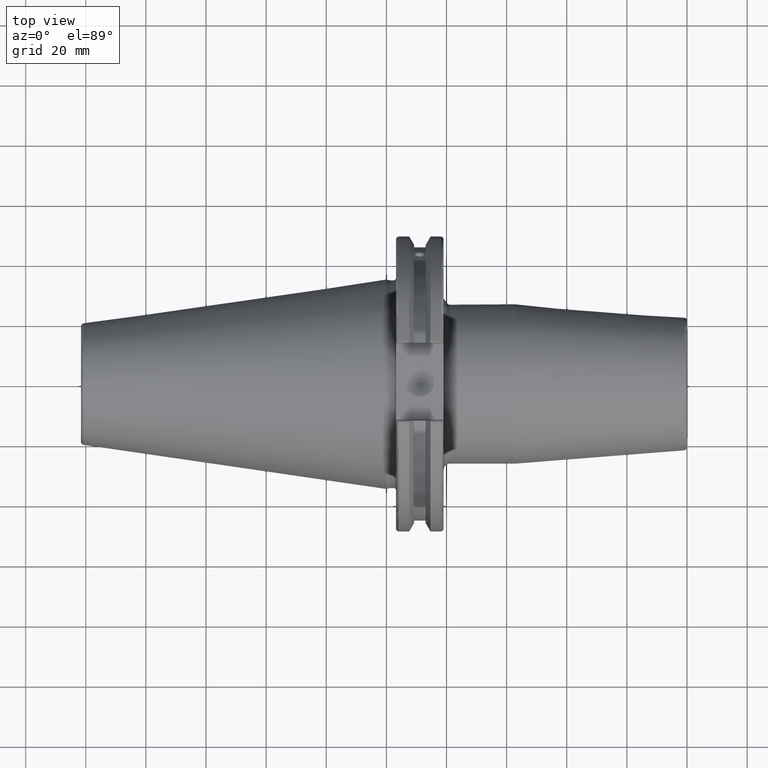
[diagram: clean part render]
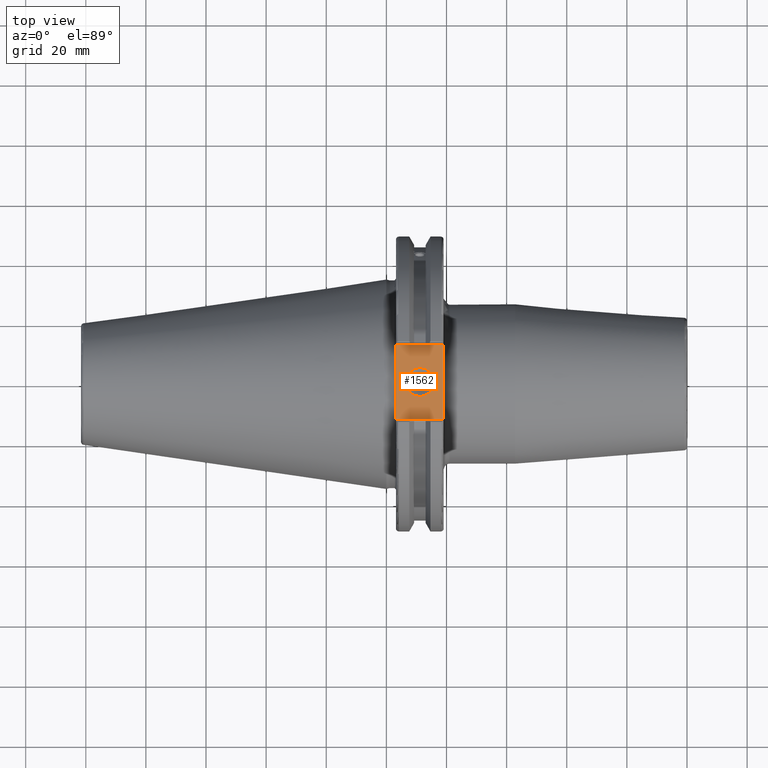
[diagram: same view with one face highlighted and labeled with its STEP entity id]
A machine part, top view. The second image highlights one B-rep face of the part: STEP entity #1562.
In plain terms, the highlighted planar face has unit normal (0, 0, 1).
Its self-contained STEP definition (entity closure, byte-faithful):
#88=LINE('',#2243,#182);
#132=LINE('',#2840,#226);
#160=LINE('',#3069,#254);
#162=LINE('',#3072,#256);
#182=VECTOR('',#1819,10.);
#226=VECTOR('',#2013,10.);
#254=VECTOR('',#2107,10.);
#256=VECTOR('',#2111,10.);
#319=FACE_BOUND('',#550,.T.);
#358=PLANE('',#1748);
#441=FACE_OUTER_BOUND('',#549,.T.);
#549=EDGE_LOOP('',(#1435,#1436,#1437,#1438));
#550=EDGE_LOOP('',(#1439));
#627=CIRCLE('',#1740,4.7625);
#652=VERTEX_POINT('',#2240);
#653=VERTEX_POINT('',#2242);
#740=VERTEX_POINT('',#2837);
#741=VERTEX_POINT('',#2839);
#787=VERTEX_POINT('',#3108);
#812=EDGE_CURVE('',#652,#653,#88,.T.);
#925=EDGE_CURVE('',#740,#741,#132,.T.);
#988=EDGE_CURVE('',#653,#740,#160,.T.);
#990=EDGE_CURVE('',#741,#652,#162,.T.);
#1005=EDGE_CURVE('',#787,#787,#627,.T.);
#1435=ORIENTED_EDGE('',*,*,#988,.F.);
#1436=ORIENTED_EDGE('',*,*,#812,.F.);
#1437=ORIENTED_EDGE('',*,*,#990,.F.);
#1438=ORIENTED_EDGE('',*,*,#925,.F.);
#1439=ORIENTED_EDGE('',*,*,#1005,.T.);
#1562=ADVANCED_FACE('',(#441,#319),#358,.T.);
#1740=AXIS2_PLACEMENT_3D('',#3109,#2146,#2147);
#1748=AXIS2_PLACEMENT_3D('',#3118,#2163,#2164);
#1819=DIRECTION('',(0.,-1.,0.));
#2013=DIRECTION('',(0.,1.,0.));
#2107=DIRECTION('',(-1.,1.31581988103722E-16,0.));
#2111=DIRECTION('',(1.,0.,0.));
#2146=DIRECTION('center_axis',(0.,0.,-1.));
#2147=DIRECTION('ref_axis',(1.,0.,0.));
#2163=DIRECTION('center_axis',(0.,0.,1.));
#2164=DIRECTION('ref_axis',(1.,0.,0.));
#2240=CARTESIAN_POINT('',(19.05,12.45,37.719));
#2242=CARTESIAN_POINT('',(19.05,-12.45,37.719));
#2243=CARTESIAN_POINT('',(19.05,0.,37.719));
#2837=CARTESIAN_POINT('',(3.175,-12.45,37.719));
#2839=CARTESIAN_POINT('',(3.175,12.45,37.719));
#2840=CARTESIAN_POINT('',(3.175,24.60625,37.719));
#3069=CARTESIAN_POINT('',(10.63125,-12.45,37.719));
#3072=CARTESIAN_POINT('',(19.06875,12.45,37.719));
#3108=CARTESIAN_POINT('',(6.3716,-5.83238038093927E-16,37.719));
#3109=CARTESIAN_POINT('Origin',(11.1341,0.,37.719));
#3118=CARTESIAN_POINT('Origin',(18.0875,0.,37.719));